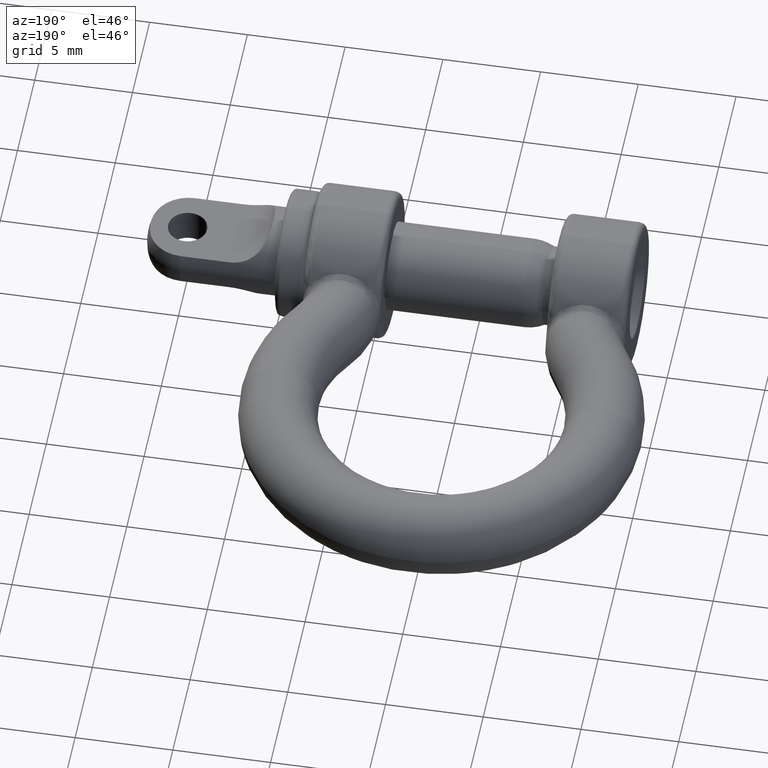
[diagram: clean part render]
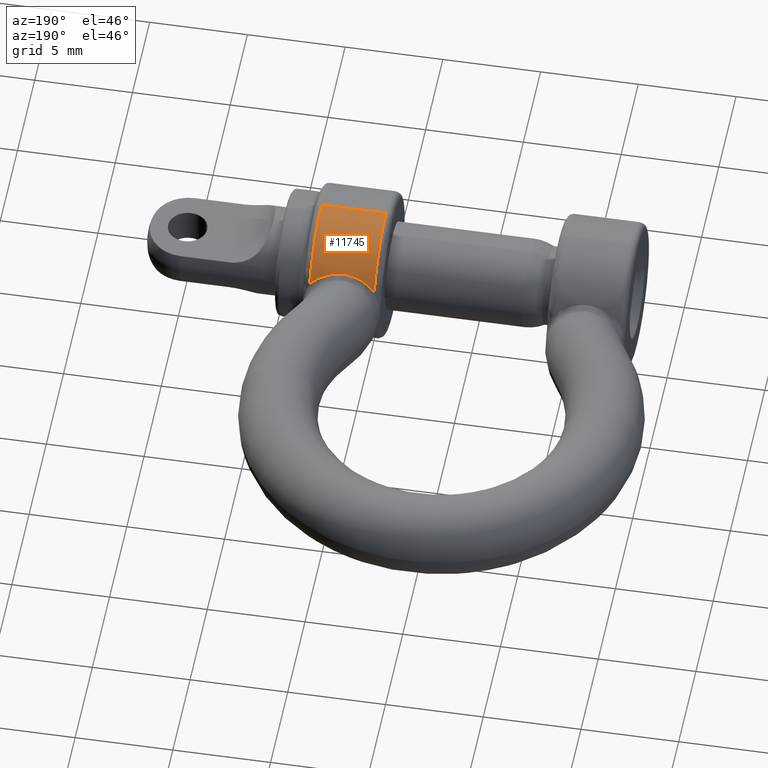
[diagram: same view with one face highlighted and labeled with its STEP entity id]
A machine part, auxiliary view. The second image highlights one B-rep face of the part: STEP entity #11745.
In plain terms, the highlighted cylindrical surface (partial cylindrical patch) has radius 3.75 mm, axis along (1, 0, 0).
Its self-contained STEP definition (entity closure, byte-faithful):
#81 = VERTEX_POINT ( 'NONE', #11629 ) ;
#97 = CARTESIAN_POINT ( 'NONE',  ( 7.900000000000000400, 3.750000000000000000, 0.0000000000000000000 ) ) ;
#783 = AXIS2_PLACEMENT_3D ( 'NONE', #10873, #4744, #15971 ) ;
#888 = ORIENTED_EDGE ( 'NONE', *, *, #12190, .T. ) ;
#1052 = EDGE_CURVE ( 'NONE', #5821, #12017, #1784, .T. ) ;
#1144 = CARTESIAN_POINT ( 'NONE',  ( 4.599999999999999600, 3.750000000000000000, 0.0000000000000000000 ) ) ;
#1551 = ORIENTED_EDGE ( 'NONE', *, *, #4651, .T. ) ;
#1784 = CIRCLE ( 'NONE', #6496, 3.750000000000000000 ) ;
#1895 = DIRECTION ( 'NONE',  ( 1.000000000000000000, 0.0000000000000000000, 0.0000000000000000000 ) ) ;
#2052 = CARTESIAN_POINT ( 'NONE',  ( 6.474911658791264700, 6.828058037509739700, 2.142052277818354200 ) ) ;
#2501 = CARTESIAN_POINT ( 'NONE',  ( 7.534529194429704400, 7.039825392591804800, 1.799874686265178700 ) ) ;
#2856 = CYLINDRICAL_SURFACE ( 'NONE', #783, 3.750000000000000000 ) ;
#2892 = CARTESIAN_POINT ( 'NONE',  ( 4.965470805540151700, 7.039825392601650300, 1.799874686247183700 ) ) ;
#3075 = FACE_OUTER_BOUND ( 'NONE', #6990, .T. ) ;
#3351 = CARTESIAN_POINT ( 'NONE',  ( 4.965470805540151700, 7.039825392601650300, 1.799874686247183700 ) ) ;
#3524 = ORIENTED_EDGE ( 'NONE', *, *, #11813, .T. ) ;
#3805 = VERTEX_POINT ( 'NONE', #15880 ) ;
#4283 = B_SPLINE_CURVE_WITH_KNOTS ( 'NONE', 3,
 ( #4532, #8492, #13738, #11355 ),
 .UNSPECIFIED., .F., .F.,
 ( 4, 4 ),
 ( 0.0000000000000000000, 0.0004747572098946342500 ),
 .UNSPECIFIED. ) ;
#4532 = CARTESIAN_POINT ( 'NONE',  ( 4.965470805540151700, 7.039825392601650300, 1.799874686247183700 ) ) ;
#4651 = EDGE_CURVE ( 'NONE', #81, #5821, #9852, .T. ) ;
#4744 = DIRECTION ( 'NONE',  ( 1.000000000000000000, 0.0000000000000000000, 0.0000000000000000000 ) ) ;
#5255 = VERTEX_POINT ( 'NONE', #9703 ) ;
#5433 = CARTESIAN_POINT ( 'NONE',  ( 7.534529194429704400, 7.039825392591804800, 1.799874686265178700 ) ) ;
#5497 = VECTOR ( 'NONE', #1895, 1000.000000000000000 ) ;
#5520 = CARTESIAN_POINT ( 'NONE',  ( 7.900000000000000400, 7.170438407970039800, 1.537238139418670900 ) ) ;
#5821 = VERTEX_POINT ( 'NONE', #10831 ) ;
#6496 = AXIS2_PLACEMENT_3D ( 'NONE', #97, #14218, #8951 ) ;
#6990 = EDGE_LOOP ( 'NONE', ( #12391, #1551, #9558, #7990, #888, #3524 ) ) ;
#7530 = CARTESIAN_POINT ( 'NONE',  ( 5.793771176002802100, 6.849393174321322800, 2.111066969212923800 ) ) ;
#7641 = VERTEX_POINT ( 'NONE', #2892 ) ;
#7706 = B_SPLINE_CURVE_WITH_KNOTS ( 'NONE', 3,
 ( #2501, #9669, #13781, #11403, #13400, #2052, #13835, #8764, #12267, #7530, #15031, #9717, #13449, #3351 ),
 .UNSPECIFIED., .F., .F.,
 ( 4, 2, 2, 2, 2, 2, 4 ),
 ( 0.0000000000000000000, 0.0006892823498238344400, 0.001033923524735752600, 0.001378564699647671100, 0.001723205874559589000, 0.002067847049471507400, 0.002757129399295346900 ),
 .UNSPECIFIED. ) ;
#7850 = EDGE_CURVE ( 'NONE', #3805, #81, #13347, .T. ) ;
#7990 = ORIENTED_EDGE ( 'NONE', *, *, #13917, .T. ) ;
#8310 = B_SPLINE_CURVE_WITH_KNOTS ( 'NONE', 3,
 ( #9467, #13003, #9254, #5433 ),
 .UNSPECIFIED., .F., .F.,
 ( 4, 4 ),
 ( 0.0000000000000000000, 0.0004686220494704179700 ),
 .UNSPECIFIED. ) ;
#8492 = CARTESIAN_POINT ( 'NONE',  ( 4.834012957618989900, 7.082764446496308400, 1.721390339022169600 ) ) ;
#8764 = CARTESIAN_POINT ( 'NONE',  ( 6.134417577835551900, 6.822944199598157200, 2.149305459139015300 ) ) ;
#8951 = DIRECTION ( 'NONE',  ( 0.0000000000000000000, 0.0000000000000000000, -1.000000000000000000 ) ) ;
#9254 = CARTESIAN_POINT ( 'NONE',  ( 7.664105316778374400, 7.082149804476354200, 1.722513786638754300 ) ) ;
#9467 = CARTESIAN_POINT ( 'NONE',  ( 7.900000000000000400, 7.170438407970039800, 1.537238139418670900 ) ) ;
#9558 = ORIENTED_EDGE ( 'NONE', *, *, #1052, .T. ) ;
#9669 = CARTESIAN_POINT ( 'NONE',  ( 7.344375189190103900, 6.977713976588776600, 1.913402430777544100 ) ) ;
#9703 = CARTESIAN_POINT ( 'NONE',  ( 7.534529194429704400, 7.039825392591804800, 1.799874686265178700 ) ) ;
#9717 = CARTESIAN_POINT ( 'NONE',  ( 5.361033762215957000, 6.922773643891604300, 2.000243390259732300 ) ) ;
#9852 = LINE ( 'NONE', #15625, #5497 ) ;
#10040 = DIRECTION ( 'NONE',  ( 1.000000000000000000, 0.0000000000000000000, 0.0000000000000000000 ) ) ;
#10831 = CARTESIAN_POINT ( 'NONE',  ( 7.900000000000000400, 3.750000000000000400, 3.750000000000000000 ) ) ;
#10873 = CARTESIAN_POINT ( 'NONE',  ( 4.250000000000000000, 3.750000000000000000, 0.0000000000000000000 ) ) ;
#11317 = DIRECTION ( 'NONE',  ( 0.0000000000000000000, 0.0000000000000000000, -1.000000000000000000 ) ) ;
#11355 = CARTESIAN_POINT ( 'NONE',  ( 4.599999999999999600, 7.174408598395140200, 1.528373564033816100 ) ) ;
#11403 = CARTESIAN_POINT ( 'NONE',  ( 6.812536189301870800, 6.864141770775775700, 2.089467098785266600 ) ) ;
#11629 = CARTESIAN_POINT ( 'NONE',  ( 4.599999999999999600, 3.750000000000000400, 3.750000000000000000 ) ) ;
#11745 = ADVANCED_FACE ( 'NONE', ( #3075 ), #2856, .T. ) ;
#11757 = AXIS2_PLACEMENT_3D ( 'NONE', #1144, #10040, #11317 ) ;
#11813 = EDGE_CURVE ( 'NONE', #7641, #3805, #4283, .T. ) ;
#12017 = VERTEX_POINT ( 'NONE', #5520 ) ;
#12190 = EDGE_CURVE ( 'NONE', #5255, #7641, #7706, .T. ) ;
#12267 = CARTESIAN_POINT ( 'NONE',  ( 6.019094114786513600, 6.828427597724132900, 2.141524065496778700 ) ) ;
#12391 = ORIENTED_EDGE ( 'NONE', *, *, #7850, .T. ) ;
#13003 = CARTESIAN_POINT ( 'NONE',  ( 7.785349644508778900, 7.126660603015929000, 1.634646134733105200 ) ) ;
#13347 = CIRCLE ( 'NONE', #11757, 3.750000000000000000 ) ;
#13400 = CARTESIAN_POINT ( 'NONE',  ( 6.700081099095194200, 6.848642845158938300, 2.112165183249268700 ) ) ;
#13449 = CARTESIAN_POINT ( 'NONE',  ( 5.153233586669450100, 6.978495039900686000, 1.911974796990749200 ) ) ;
#13738 = CARTESIAN_POINT ( 'NONE',  ( 4.712231287633075600, 7.128488088986682000, 1.631261098182194000 ) ) ;
#13781 = CARTESIAN_POINT ( 'NONE',  ( 7.137997350015989000, 6.922444824897806500, 2.000775033472170300 ) ) ;
#13835 = CARTESIAN_POINT ( 'NONE',  ( 6.361781742273235500, 6.822826574019604400, 2.149473623129084300 ) ) ;
#13917 = EDGE_CURVE ( 'NONE', #12017, #5255, #8310, .T. ) ;
#14218 = DIRECTION ( 'NONE',  ( -1.000000000000000000, -0.0000000000000000000, -0.0000000000000000000 ) ) ;
#15031 = CARTESIAN_POINT ( 'NONE',  ( 5.683758229313125900, 6.864729463792253100, 2.088588499752204600 ) ) ;
#15625 = CARTESIAN_POINT ( 'NONE',  ( 4.250000000000000000, 3.750000000000000400, 3.750000000000000000 ) ) ;
#15880 = CARTESIAN_POINT ( 'NONE',  ( 4.599999999999999600, 7.174408598395140200, 1.528373564033816100 ) ) ;
#15971 = DIRECTION ( 'NONE',  ( 0.0000000000000000000, 0.0000000000000000000, -1.000000000000000000 ) ) ;